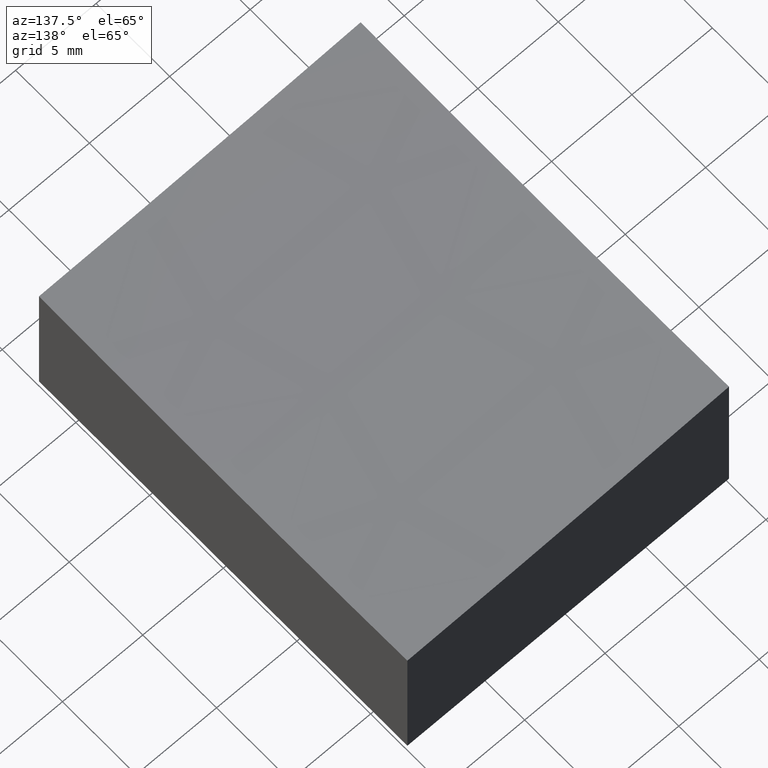
[diagram: clean part render]
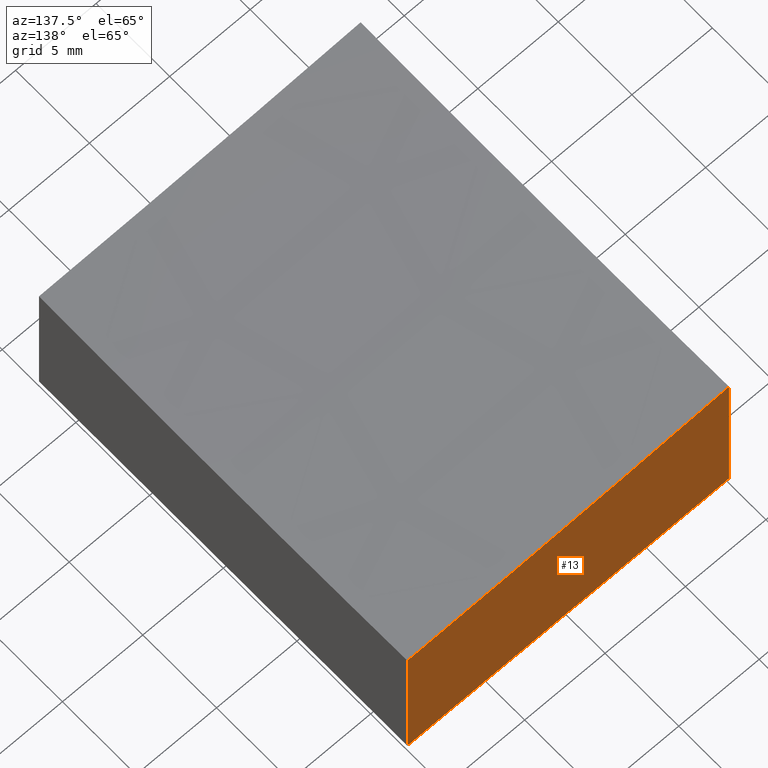
[diagram: same view with one face highlighted and labeled with its STEP entity id]
A machine part, auxiliary view. The second image highlights one B-rep face of the part: STEP entity #13.
In plain terms, the highlighted planar face has unit normal (0, -1, 0).
Its self-contained STEP definition (entity closure, byte-faithful):
#7 = CARTESIAN_POINT ( 'NONE',  ( 10.00000000000000178, 12.50000000000000000, -10.00000000000000000 ) ) ;
#13 = ADVANCED_FACE ( 'NONE', ( #121 ), #118, .F. ) ;
#22 = DIRECTION ( 'NONE',  ( -0.000000000000000000, -0.000000000000000000, -1.000000000000000000 ) ) ;
#30 = EDGE_CURVE ( 'NONE', #68, #246, #79, .T. ) ;
#42 = LINE ( 'NONE', #215, #123 ) ;
#55 = VERTEX_POINT ( 'NONE', #76 ) ;
#68 = VERTEX_POINT ( 'NONE', #139 ) ;
#76 = CARTESIAN_POINT ( 'NONE',  ( -9.999999999999998224, 12.49999999999999645, -10.00000000000000000 ) ) ;
#77 = VERTEX_POINT ( 'NONE', #7 ) ;
#79 = CIRCLE ( 'NONE', #211, 399.8046397929868476 ) ;
#87 = AXIS2_PLACEMENT_3D ( 'NONE', #254, #195, #265 ) ;
#96 = CARTESIAN_POINT ( 'NONE',  ( 10.00000000000000178, 12.50000000000000000, -10.00000000000000000 ) ) ;
#101 = LINE ( 'NONE', #110, #276 ) ;
#104 = ORIENTED_EDGE ( 'NONE', *, *, #30, .T. ) ;
#110 = CARTESIAN_POINT ( 'NONE',  ( 10.00000000000000178, 12.50000000000000000, 10.00000000000000000 ) ) ;
#112 = ORIENTED_EDGE ( 'NONE', *, *, #255, .T. ) ;
#118 = PLANE ( 'NONE',  #87 ) ;
#121 = FACE_OUTER_BOUND ( 'NONE', #143, .T. ) ;
#123 = VECTOR ( 'NONE', #22, 1000.000000000000000 ) ;
#130 = EDGE_CURVE ( 'NONE', #68, #55, #42, .T. ) ;
#139 = CARTESIAN_POINT ( 'NONE',  ( -10.00000000000000000, 12.49999999999999645, -0.02224248780913207213 ) ) ;
#141 = DIRECTION ( 'NONE',  ( 1.734723475976807094E-16, -1.000000000000000000, 0.000000000000000000 ) ) ;
#143 = EDGE_LOOP ( 'NONE', ( #238, #104, #259, #112 ) ) ;
#151 = EDGE_CURVE ( 'NONE', #246, #77, #101, .T. ) ;
#152 = CARTESIAN_POINT ( 'NONE',  ( 15.00000000000004974, 12.50000000000000178, 399.0000000000000000 ) ) ;
#160 = DIRECTION ( 'NONE',  ( -1.000000000000000000, -1.734723475976807094E-16, 0.000000000000000000 ) ) ;
#176 = LINE ( 'NONE', #96, #212 ) ;
#195 = DIRECTION ( 'NONE',  ( 1.734723475976807094E-16, -1.000000000000000000, 0.000000000000000000 ) ) ;
#211 = AXIS2_PLACEMENT_3D ( 'NONE', #152, #141, #221 ) ;
#212 = VECTOR ( 'NONE', #160, 1000.000000000000000 ) ;
#215 = CARTESIAN_POINT ( 'NONE',  ( -9.999999999999998224, 12.49999999999999645, 10.00000000000000000 ) ) ;
#220 = DIRECTION ( 'NONE',  ( -0.000000000000000000, -0.000000000000000000, -1.000000000000000000 ) ) ;
#221 = DIRECTION ( 'NONE',  ( 1.000000000000000000, 1.735571129814823690E-16, 0.000000000000000000 ) ) ;
#238 = ORIENTED_EDGE ( 'NONE', *, *, #130, .F. ) ;
#246 = VERTEX_POINT ( 'NONE', #260 ) ;
#254 = CARTESIAN_POINT ( 'NONE',  ( 10.00000000000000178, 12.50000000000000000, 10.00000000000000000 ) ) ;
#255 = EDGE_CURVE ( 'NONE', #77, #55, #176, .T. ) ;
#259 = ORIENTED_EDGE ( 'NONE', *, *, #151, .T. ) ;
#260 = CARTESIAN_POINT ( 'NONE',  ( 10.00000000000000178, 12.50000000000000000, -0.7733733004237630659 ) ) ;
#265 = DIRECTION ( 'NONE',  ( 1.000000000000000000, 1.734723475976807094E-16, 0.000000000000000000 ) ) ;
#276 = VECTOR ( 'NONE', #220, 1000.000000000000000 ) ;